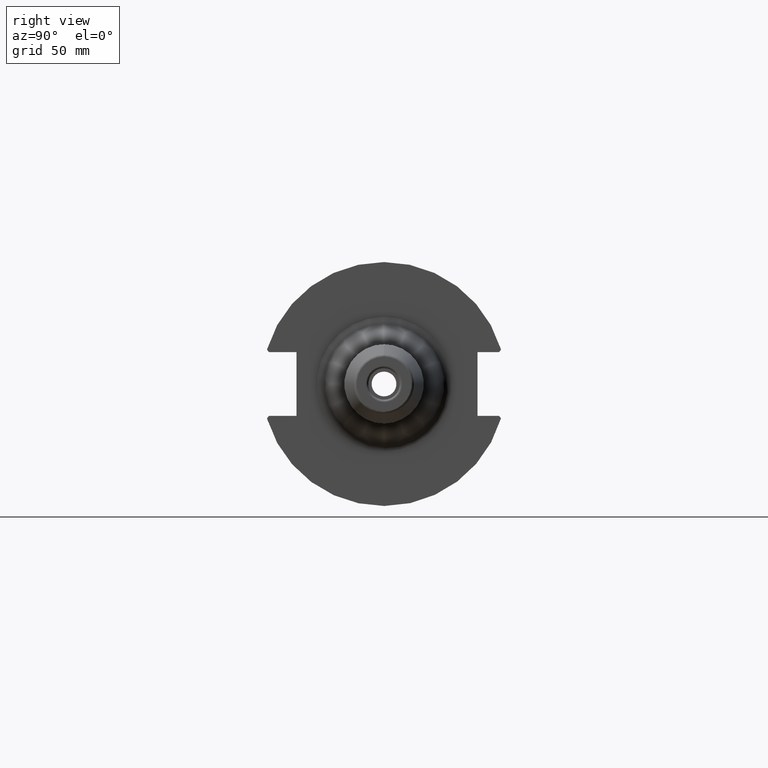
[diagram: clean part render]
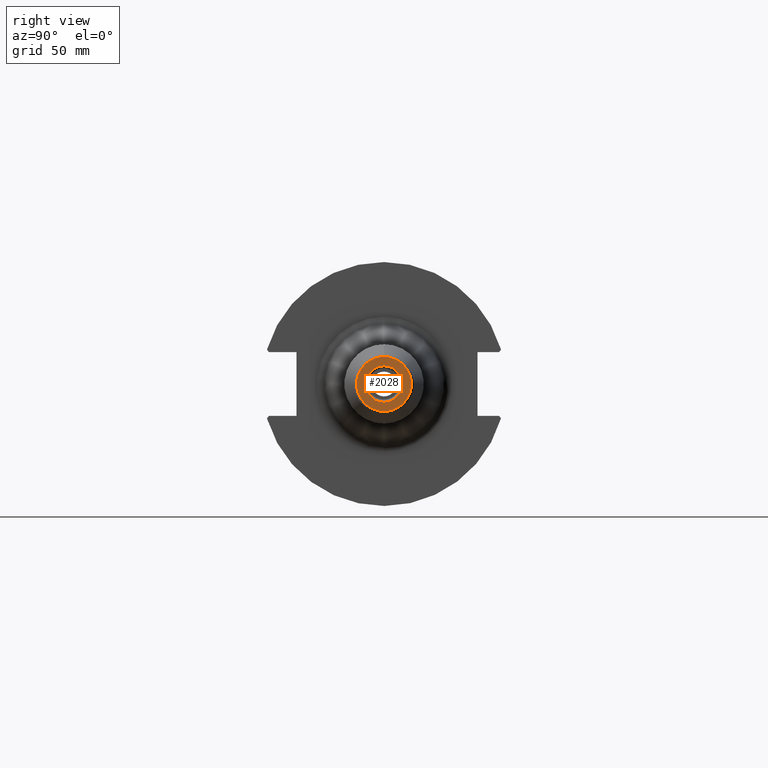
[diagram: same view with one face highlighted and labeled with its STEP entity id]
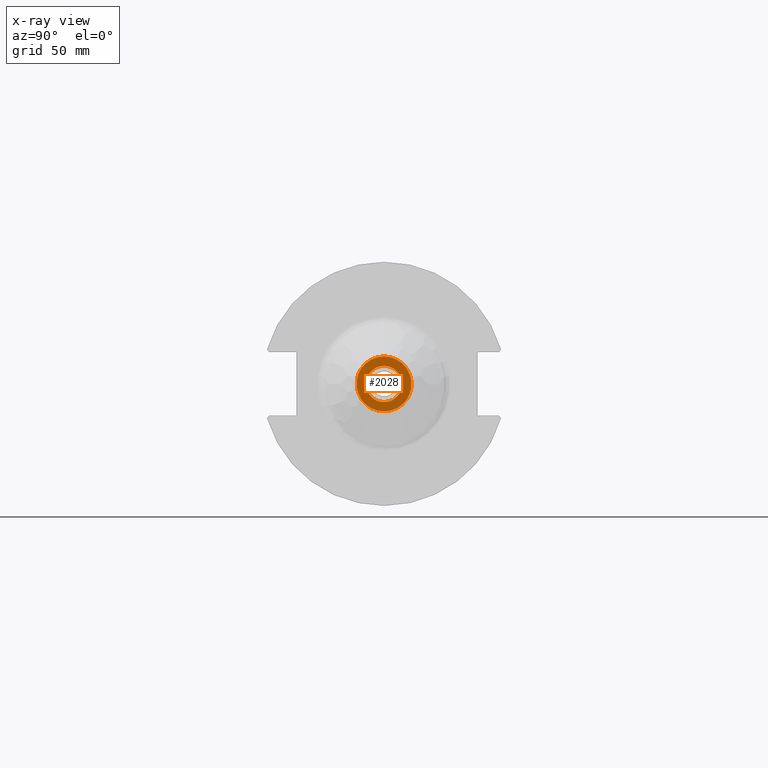
[diagram: x-ray of the same camera — body ghosted, the highlighted face saturated]
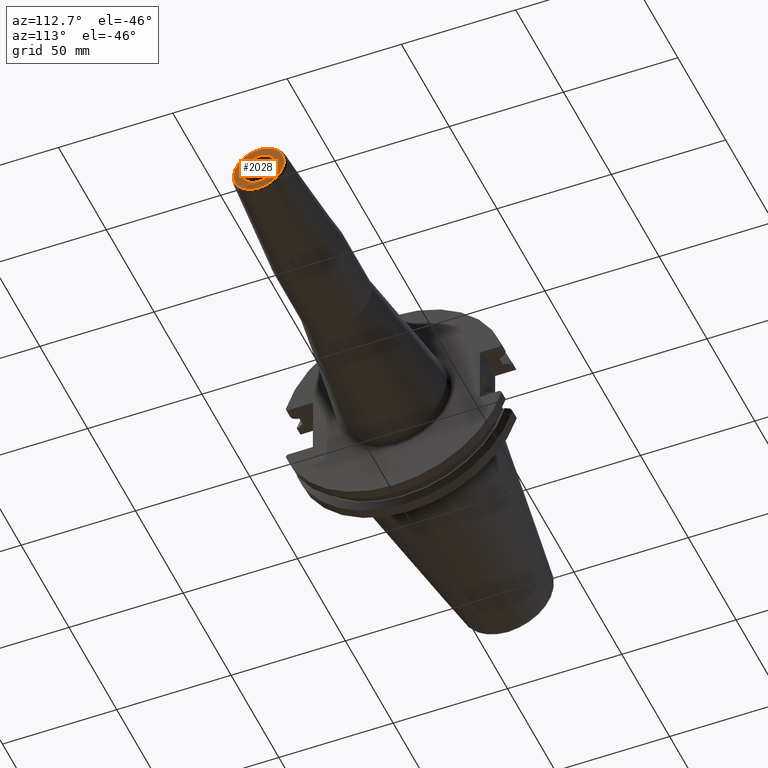
[diagram: same view with one face highlighted and labeled with its STEP entity id]
A machine part, right view. The second image highlights one B-rep face of the part: STEP entity #2028.
The next image is the same camera in x-ray: the body ghosted, the highlighted face saturated — about 0% of this face is hidden behind the body in this view.
A second angle (auxiliary view) of the same face is appended — the face is thin or edge-on in the first view.
In plain terms, the highlighted planar face has unit normal (1, 0, 0).
Its self-contained STEP definition (entity closure, byte-faithful):
#428=CARTESIAN_POINT('',(1.6E2,0.E0,0.E0));
#429=DIRECTION('',(-1.E0,0.E0,0.E0));
#430=DIRECTION('',(0.E0,0.E0,-1.E0));
#431=AXIS2_PLACEMENT_3D('',#428,#429,#430);
#433=CARTESIAN_POINT('',(1.6E2,0.E0,0.E0));
#434=DIRECTION('',(1.E0,0.E0,0.E0));
#435=DIRECTION('',(0.E0,0.E0,-1.E0));
#436=AXIS2_PLACEMENT_3D('',#433,#434,#435);
#438=CARTESIAN_POINT('',(1.6E2,0.E0,0.E0));
#439=DIRECTION('',(1.E0,0.E0,0.E0));
#440=DIRECTION('',(0.E0,0.E0,-1.E0));
#441=AXIS2_PLACEMENT_3D('',#438,#439,#440);
#453=CARTESIAN_POINT('',(1.6E2,0.E0,0.E0));
#454=DIRECTION('',(-1.E0,0.E0,0.E0));
#455=DIRECTION('',(0.E0,0.E0,-1.E0));
#456=AXIS2_PLACEMENT_3D('',#453,#454,#455);
#1311=CARTESIAN_POINT('',(1.6E2,0.E0,-7.349999999999E0));
#1312=VERTEX_POINT('',#1311);
#1313=CARTESIAN_POINT('',(1.6E2,0.E0,-1.107560950834E1));
#1315=VERTEX_POINT('',#1313);
#1341=CARTESIAN_POINT('',(1.6E2,0.E0,7.349999999999E0));
#1342=VERTEX_POINT('',#1341);
#1343=CARTESIAN_POINT('',(1.6E2,0.E0,1.107560950834E1));
#1345=VERTEX_POINT('',#1343);
#2013=CARTESIAN_POINT('',(1.6E2,0.E0,0.E0));
#2014=DIRECTION('',(1.E0,0.E0,0.E0));
#2015=DIRECTION('',(0.E0,0.E0,1.E0));
#2016=AXIS2_PLACEMENT_3D('',#2013,#2014,#2015);
#2017=PLANE('',#2016);
#2019=ORIENTED_EDGE('',*,*,#2018,.F.);
#2021=ORIENTED_EDGE('',*,*,#2020,.T.);
#2022=EDGE_LOOP('',(#2019,#2021));
#2023=FACE_OUTER_BOUND('',#2022,.F.);
#2024=ORIENTED_EDGE('',*,*,#1992,.F.);
#2025=ORIENTED_EDGE('',*,*,#2008,.T.);
#2026=EDGE_LOOP('',(#2024,#2025));
#2027=FACE_BOUND('',#2026,.F.);
#2028=ADVANCED_FACE('',(#2023,#2027),#2017,.T.);
#432=CIRCLE('',#431,7.349999999999E0);
#437=CIRCLE('',#436,7.349999999999E0);
#442=CIRCLE('',#441,1.107560950834E1);
#457=CIRCLE('',#456,1.107560950834E1);
#1992=EDGE_CURVE('',#1312,#1342,#432,.T.);
#2008=EDGE_CURVE('',#1312,#1342,#437,.T.);
#2018=EDGE_CURVE('',#1315,#1345,#442,.T.);
#2020=EDGE_CURVE('',#1315,#1345,#457,.T.);